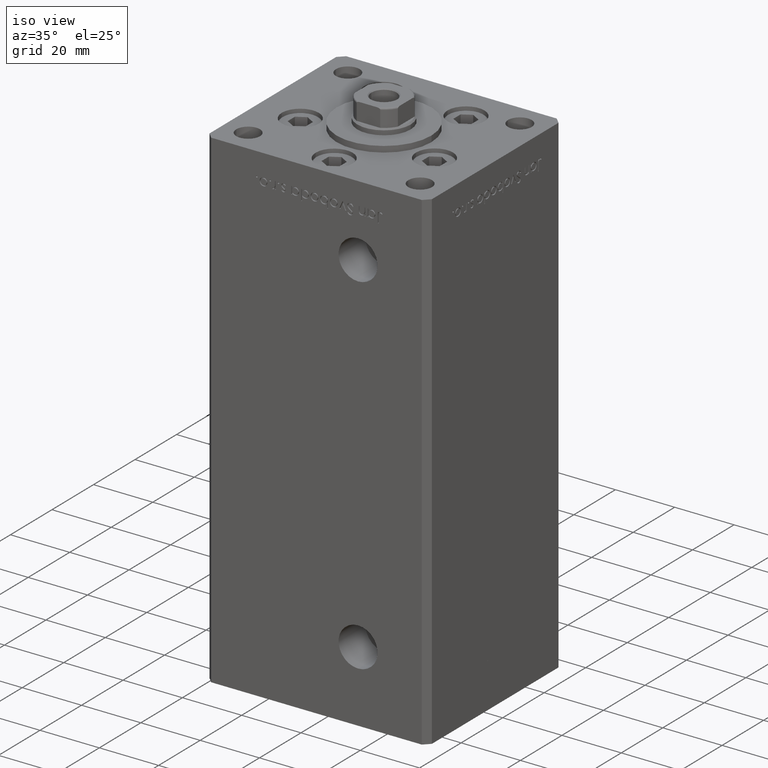
[diagram: clean part render]
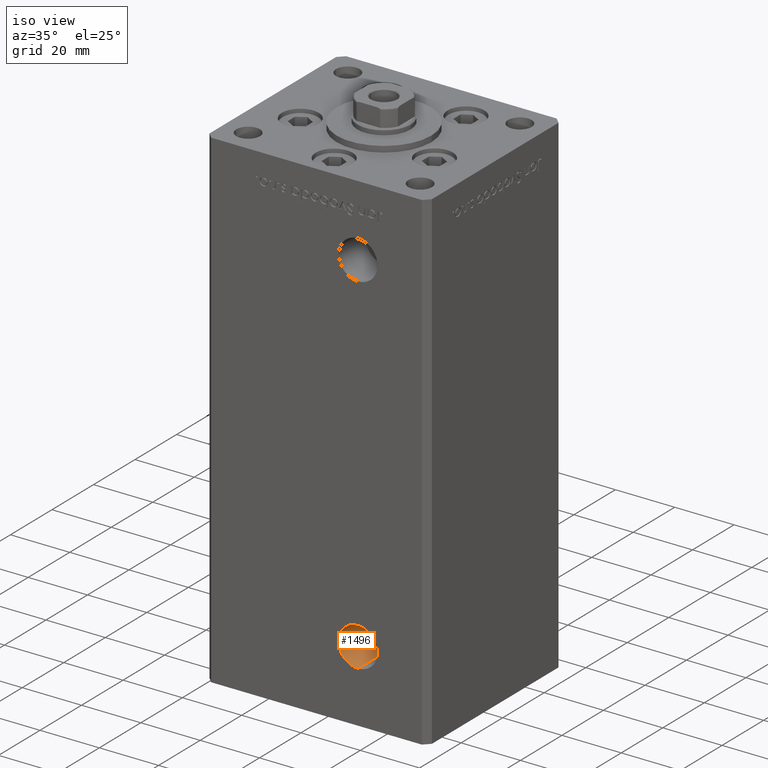
[diagram: same view with one face highlighted and labeled with its STEP entity id]
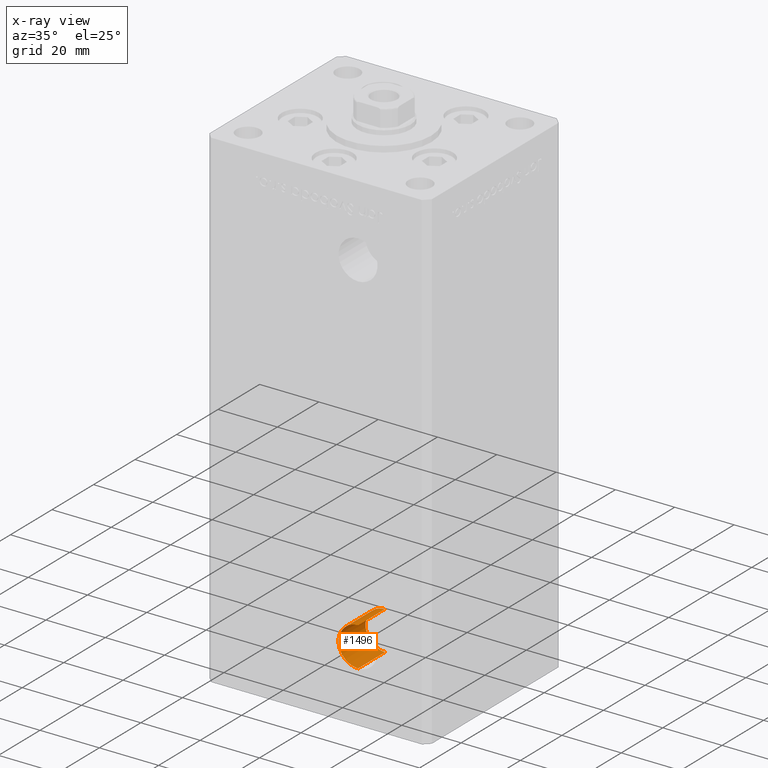
[diagram: x-ray of the same camera — body ghosted, the highlighted face saturated]
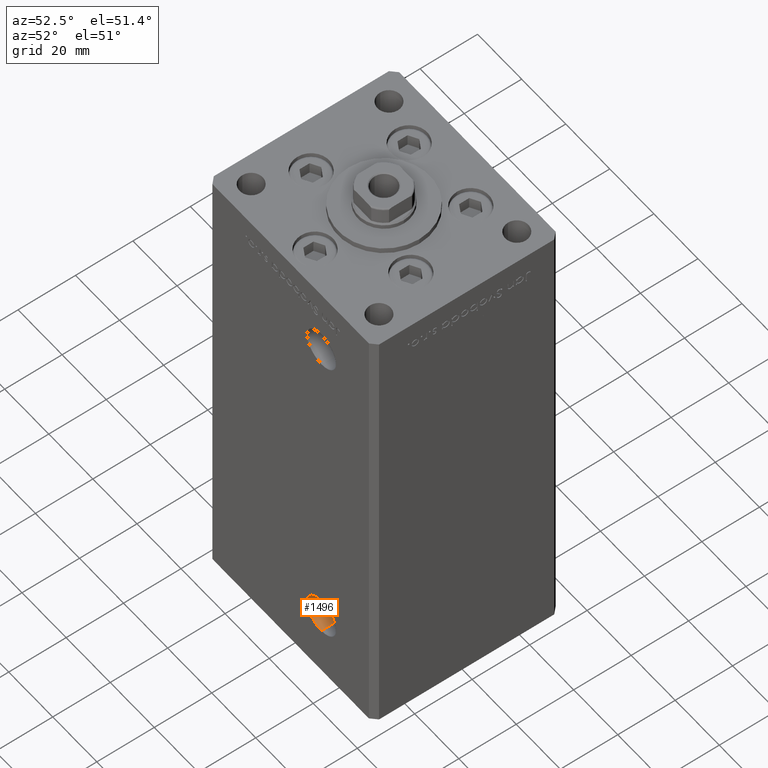
[diagram: same view with one face highlighted and labeled with its STEP entity id]
A machine part, iso view. The second image highlights one B-rep face of the part: STEP entity #1496.
The next image is the same camera in x-ray: the body ghosted, the highlighted face saturated — about 0% of this face is hidden behind the body in this view.
A second angle (auxiliary view) of the same face is appended — the face is thin or edge-on in the first view.
In plain terms, the highlighted cylindrical surface (edge-blend (fillet) strip) has radius 6.58 mm, axis along (-0, -1, -0).
Its self-contained STEP definition (entity closure, byte-faithful):
#479 = CARTESIAN_POINT ( 'NONE',  ( 13.99999999999999112, -19.50000000000000355, 9.000000000000007105 ) ) ;
#1148 = LINE ( 'NONE', #50209, #48063 ) ;
#1496 = ADVANCED_FACE ( 'NONE', ( #16573 ), #24487, .F. ) ;
#2134 = AXIS2_PLACEMENT_3D ( 'NONE', #479, #12861, #40594 ) ;
#4578 = CARTESIAN_POINT ( 'NONE',  ( 13.99999999999999112, -19.50000000000000355, 9.000000000000007105 ) ) ;
#4786 = CARTESIAN_POINT ( 'NONE',  ( 13.99999999999999112, -19.50000000000000355, 15.58000000000000718 ) ) ;
#9329 = DIRECTION ( 'NONE',  ( -0.000000000000000000, -1.000000000000000000, -0.000000000000000000 ) ) ;
#9956 = EDGE_LOOP ( 'NONE', ( #39692, #21733, #42947, #26694 ) ) ;
#11759 = DIRECTION ( 'NONE',  ( 0.000000000000000000, 0.000000000000000000, -1.000000000000000000 ) ) ;
#12068 = CARTESIAN_POINT ( 'NONE',  ( 13.99999999999999112, -19.50000000000000355, 15.58000000000000718 ) ) ;
#12432 = VERTEX_POINT ( 'NONE', #38172 ) ;
#12861 = DIRECTION ( 'NONE',  ( -0.000000000000000000, -1.000000000000000000, -0.000000000000000000 ) ) ;
#13220 = LINE ( 'NONE', #4786, #37979 ) ;
#16573 = FACE_OUTER_BOUND ( 'NONE', #9956, .T. ) ;
#16990 = DIRECTION ( 'NONE',  ( 0.000000000000000000, -1.000000000000000000, 0.000000000000000000 ) ) ;
#19433 = DIRECTION ( 'NONE',  ( 0.000000000000000000, -1.000000000000000000, 0.000000000000000000 ) ) ;
#19518 = VERTEX_POINT ( 'NONE', #22662 ) ;
#19617 = CIRCLE ( 'NONE', #49958, 6.579999999999998295 ) ;
#20099 = CARTESIAN_POINT ( 'NONE',  ( 13.99999999999999112, -32.50000000000000000, 2.420000000000009699 ) ) ;
#20903 = EDGE_CURVE ( 'NONE', #12432, #22114, #1148, .T. ) ;
#21733 = ORIENTED_EDGE ( 'NONE', *, *, #51836, .T. ) ;
#22114 = VERTEX_POINT ( 'NONE', #20099 ) ;
#22662 = CARTESIAN_POINT ( 'NONE',  ( 13.99999999999999112, -32.50000000000000000, 15.58000000000000718 ) ) ;
#24323 = DIRECTION ( 'NONE',  ( -0.000000000000000000, -1.000000000000000000, -0.000000000000000000 ) ) ;
#24419 = AXIS2_PLACEMENT_3D ( 'NONE', #48197, #19433, #11759 ) ;
#24487 = CYLINDRICAL_SURFACE ( 'NONE', #2134, 6.579999999999998295 ) ;
#26694 = ORIENTED_EDGE ( 'NONE', *, *, #20903, .F. ) ;
#27138 = EDGE_CURVE ( 'NONE', #36710, #12432, #19617, .T. ) ;
#28639 = CIRCLE ( 'NONE', #24419, 6.579999999999998295 ) ;
#36710 = VERTEX_POINT ( 'NONE', #12068 ) ;
#37979 = VECTOR ( 'NONE', #24323, 1000.000000000000000 ) ;
#38172 = CARTESIAN_POINT ( 'NONE',  ( 13.99999999999999112, -19.50000000000000355, 2.420000000000009699 ) ) ;
#39692 = ORIENTED_EDGE ( 'NONE', *, *, #27138, .F. ) ;
#40594 = DIRECTION ( 'NONE',  ( 0.000000000000000000, 0.000000000000000000, -1.000000000000000000 ) ) ;
#42947 = ORIENTED_EDGE ( 'NONE', *, *, #45108, .T. ) ;
#45108 = EDGE_CURVE ( 'NONE', #19518, #22114, #28639, .T. ) ;
#48063 = VECTOR ( 'NONE', #9329, 1000.000000000000000 ) ;
#48197 = CARTESIAN_POINT ( 'NONE',  ( 13.99999999999999112, -32.50000000000000000, 9.000000000000007105 ) ) ;
#48931 = DIRECTION ( 'NONE',  ( 0.000000000000000000, 0.000000000000000000, -1.000000000000000000 ) ) ;
#49958 = AXIS2_PLACEMENT_3D ( 'NONE', #4578, #16990, #48931 ) ;
#50209 = CARTESIAN_POINT ( 'NONE',  ( 13.99999999999999112, -19.50000000000000355, 2.420000000000009699 ) ) ;
#51836 = EDGE_CURVE ( 'NONE', #36710, #19518, #13220, .T. ) ;